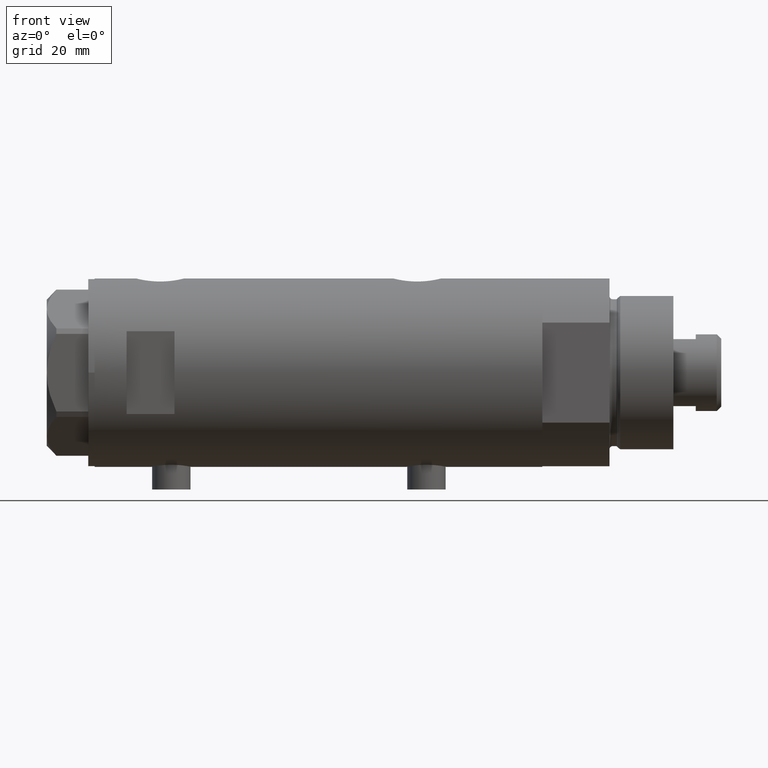
[diagram: clean part render]
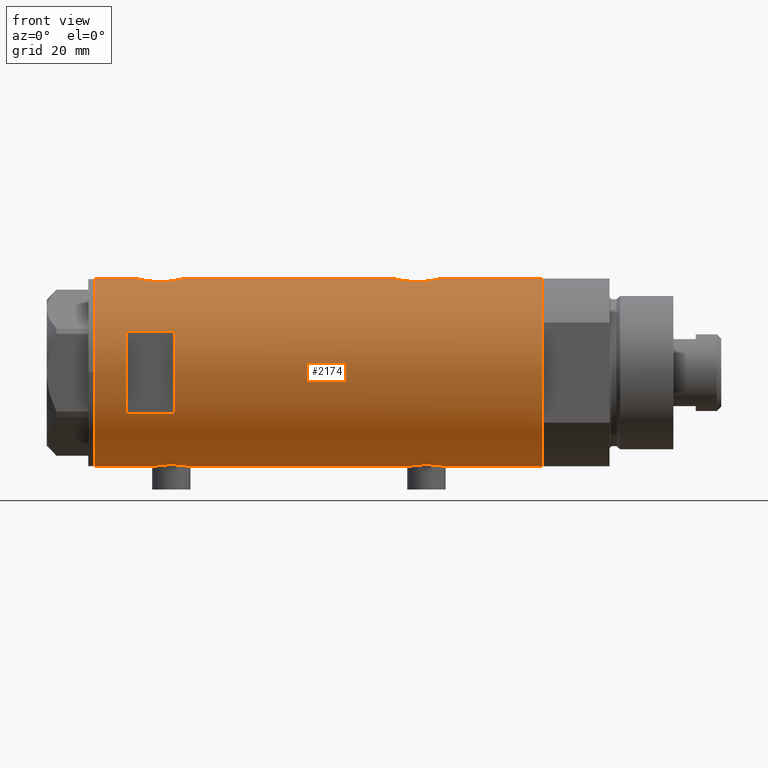
[diagram: same view with one face highlighted and labeled with its STEP entity id]
A machine part, front view. The second image highlights one B-rep face of the part: STEP entity #2174.
In plain terms, the highlighted cylindrical surface (partial cylindrical patch) has radius 29.5 mm, axis along (-1, -0, 0).
Its self-contained STEP definition (entity closure, byte-faithful):
#17 = CARTESIAN_POINT ( 'NONE',  ( 29.17410189149616428, -4.377709617224021521, 43.50524172523978450 ) ) ;
#44 = CARTESIAN_POINT ( 'NONE',  ( 28.98816846638396427, -5.474212100855875285, -25.76747840116693666 ) ) ;
#62 = CARTESIAN_POINT ( 'NONE',  ( -29.50000000000000355, 7.333735512235174214E-18, -27.54999999999999361 ) ) ;
#82 = VERTEX_POINT ( 'NONE', #1591 ) ;
#98 = CARTESIAN_POINT ( 'NONE',  ( 29.50000000000000355, 0.000000000000000000, 70.09999999999999432 ) ) ;
#100 = DIRECTION ( 'NONE',  ( 1.000000000000000000, 0.000000000000000000, 0.000000000000000000 ) ) ;
#140 = LINE ( 'NONE', #2880, #1420 ) ;
#153 = CARTESIAN_POINT ( 'NONE',  ( -28.96147498926091757, -5.613273026676365518, 43.32107301657420351 ) ) ;
#169 = CARTESIAN_POINT ( 'NONE',  ( -29.50000000000000355, 3.612706708236066082E-15, -40.05000000000000426 ) ) ;
#174 = DIRECTION ( 'NONE',  ( 0.000000000000000000, 0.000000000000000000, 1.000000000000000000 ) ) ;
#215 = CARTESIAN_POINT ( 'NONE',  ( -29.38738983524999782, -2.582042051636494584, 40.40464828404620334 ) ) ;
#216 = B_SPLINE_CURVE_WITH_KNOTS ( 'NONE', 3,
 ( #947, #690, #2719, #4446, #670, #2359, #1372, #2023, #3398, #3321, #315, #604, #1692, #3055, #4105, #4401, #1619, #1349, #1016, #2377, #3755, #2986, #2043, #2313, #1716, #3691, #3077, #2741, #1969, #3348, #1646, #2853, #3460, #754, #4232, #3114, #17, #2130, #2423, #3849, #3505, #1448, #399, #380 ),
 .UNSPECIFIED., .F., .F.,
 ( 4, 2, 2, 2, 2, 2, 2, 2, 2, 2, 2, 2, 2, 2, 2, 2, 2, 2, 2, 2, 2, 4 ),
 ( 0.02354540741801906811, 0.02501659793198015777, 0.02648778844594124743, 0.02722338370292179052, 0.02795897895990233362, 0.02943016947386341287, 0.03016576473084396290, 0.03090135998782451293, 0.03237255050178562688, 0.03384374101574673388, 0.03457933627272730126, 0.03531493152970786864, 0.03678612204366901728, 0.03825731255763017286, 0.03972850307159132843, 0.04046409832857190969, 0.04119969358555249095, 0.04193528884253308608, 0.04267088409951366734, 0.04414207461347482986, 0.04561326512743600625, 0.04708445564139716877 ),
 .UNSPECIFIED. ) ;
#231 = EDGE_LOOP ( 'NONE', ( #1975, #3108, #951, #4141 ) ) ;
#235 = CARTESIAN_POINT ( 'NONE',  ( 29.50000000000000355, -1.363453657738827866E-15, 42.09999999999999432 ) ) ;
#236 = CARTESIAN_POINT ( 'NONE',  ( -28.89999183068148625, -5.919812056825914937, 44.08499761164583219 ) ) ;
#239 = FACE_OUTER_BOUND ( 'NONE', #1347, .T. ) ;
#263 = CARTESIAN_POINT ( 'NONE',  ( -29.12311479234994849, -4.702282052053736727, 50.22223528886483734 ) ) ;
#275 = B_SPLINE_CURVE_WITH_KNOTS ( 'NONE', 3,
 ( #1599, #1579, #3670, #3298, #3580, #215, #1868, #2964, #4347, #1250, #583, #1516, #3224, #1530, #153, #2896, #236, #3417, #4037, #2672, #3015, #2333, #4374, #1035, #2398, #3035, #1279, #3377, #291, #1668, #263, #333, #1003, #3738, #1304, #649, #3776, #4425, #2651, #992, #4057, #4078, #967 ),
 .UNSPECIFIED., .F., .F.,
 ( 4, 2, 2, 2, 2, 2, 2, 2, 2, 1, 2, 2, 2, 2, 2, 2, 2, 2, 2, 2, 2, 4 ),
 ( 0.01959598605283711242, 0.02082041500883366134, 0.02204484396483021025, 0.02265705844282848644, 0.02326927292082675916, 0.02449370187682329766, 0.02571813083281983617, 0.02694255978881637467, 0.02755477426681463352, 0.02816698874481289236, 0.02877920322281115467, 0.02939141770080941352, 0.03061584665680593120, 0.03184027561280244889, 0.03306470456879896658, 0.03367691904679723236, 0.03428913352479548426, 0.03551356248079202277, 0.03673799143678855433, 0.03735020591478682705, 0.03796242039278509284, 0.03918684934878162440 ),
 .UNSPECIFIED. ) ;
#291 = CARTESIAN_POINT ( 'NONE',  ( -29.05872136210575007, -5.084685578900224989, 49.74009991908757655 ) ) ;
#315 = CARTESIAN_POINT ( 'NONE',  ( 29.08294968506023537, -4.955368226349206040, 55.25096718198464885 ) ) ;
#330 = ORIENTED_EDGE ( 'NONE', *, *, #1626, .F. ) ;
#333 = CARTESIAN_POINT ( 'NONE',  ( -29.14490888978863481, -4.565669626908227308, 50.37298179876215443 ) ) ;
#345 = CIRCLE ( 'NONE', #482, 29.50000000000000355 ) ;
#366 = ORIENTED_EDGE ( 'NONE', *, *, #2606, .T. ) ;
#380 = CARTESIAN_POINT ( 'NONE',  ( 29.50000000000000355, -1.363453657738827866E-15, 42.09999999999999432 ) ) ;
#384 = CARTESIAN_POINT ( 'NONE',  ( 28.59337635119608123, -7.258007499531540674, -28.94783774348637806 ) ) ;
#395 = DIRECTION ( 'NONE',  ( 0.000000000000000000, 0.000000000000000000, 1.000000000000000000 ) ) ;
#399 = CARTESIAN_POINT ( 'NONE',  ( 29.50000000000000711, -0.4976091310423220726, 42.10000000000000142 ) ) ;
#407 = CARTESIAN_POINT ( 'NONE',  ( 28.55627543367308618, -7.402134446380870259, -29.66780349681762274 ) ) ;
#422 = CARTESIAN_POINT ( 'NONE',  ( 12.96148139681573319, -26.49999999999999645, -70.09999999999999432 ) ) ;
#433 = CARTESIAN_POINT ( 'NONE',  ( 28.86327882047615390, -6.097569254709687137, -26.52632909088550051 ) ) ;
#456 = CARTESIAN_POINT ( 'NONE',  ( -29.31475612970063338, -3.305202271067065212, -39.10847868843855224 ) ) ;
#460 = VERTEX_POINT ( 'NONE', #3457 ) ;
#467 = CARTESIAN_POINT ( 'NONE',  ( 29.23250901027695647, -3.968959760999265729, -24.53153982712338532 ) ) ;
#475 = CARTESIAN_POINT ( 'NONE',  ( -28.87532468301957422, -6.038983942005352823, -35.42329367688535768 ) ) ;
#482 = AXIS2_PLACEMENT_3D ( 'NONE', #1123, #1755, #1778 ) ;
#492 = CARTESIAN_POINT ( 'NONE',  ( 29.48742104091791916, -0.9879539515379959225, -38.35095698353976701 ) ) ;
#512 = ORIENTED_EDGE ( 'NONE', *, *, #3528, .F. ) ;
#583 = CARTESIAN_POINT ( 'NONE',  ( -29.21108587560691205, -4.128853169727746852, 41.39032723090409860 ) ) ;
#604 = CARTESIAN_POINT ( 'NONE',  ( 28.98816846638396072, -5.474212100855873508, 54.73252159883303136 ) ) ;
#619 = VECTOR ( 'NONE', #4261, 1000.000000000000000 ) ;
#649 = CARTESIAN_POINT ( 'NONE',  ( -29.37136442049237317, -2.777615426151012201, 51.71365112622115845 ) ) ;
#670 = CARTESIAN_POINT ( 'NONE',  ( 29.40378957563275009, -2.423455993307766398, 56.71449460115983499 ) ) ;
#686 = CARTESIAN_POINT ( 'NONE',  ( -29.49152014567324542, -0.8152473631539811638, -40.01035294833332046 ) ) ;
#690 = CARTESIAN_POINT ( 'NONE',  ( 29.50000000000001066, -0.4905639552620955079, 57.10000000000000142 ) ) ;
#725 = CARTESIAN_POINT ( 'NONE',  ( 28.98740664105172016, -5.478212189394663589, -36.02819516185791571 ) ) ;
#734 = ORIENTED_EDGE ( 'NONE', *, *, #3705, .F. ) ;
#737 = CARTESIAN_POINT ( 'NONE',  ( -29.50000000000000355, -1.251314770453635394E-15, 52.34999999999999432 ) ) ;
#742 = CARTESIAN_POINT ( 'NONE',  ( 29.26166309680877831, -3.765013078516714629, -37.40510232053061657 ) ) ;
#754 = CARTESIAN_POINT ( 'NONE',  ( 29.05028789344173745, -5.134328181356786480, 44.12753542393733852 ) ) ;
#766 = VECTOR ( 'NONE', #3997, 1000.000000000000000 ) ;
#777 = CARTESIAN_POINT ( 'NONE',  ( -28.91427970886710597, -5.849862889315918579, -36.00993133128850587 ) ) ;
#791 = EDGE_CURVE ( 'NONE', #1580, #1007, #2587, .T. ) ;
#808 = CARTESIAN_POINT ( 'NONE',  ( 29.14531914445118943, -4.579221598645966118, -24.94009767007192480 ) ) ;
#810 = EDGE_CURVE ( 'NONE', #82, #1387, #3627, .T. ) ;
#811 = CARTESIAN_POINT ( 'NONE',  ( -12.96148139681573319, -26.49999999999999645, -70.09999999999999432 ) ) ;
#828 = DIRECTION ( 'NONE',  ( 1.000000000000000000, 0.000000000000000000, 0.000000000000000000 ) ) ;
#859 = EDGE_CURVE ( 'NONE', #3795, #460, #140, .T. ) ;
#886 = CARTESIAN_POINT ( 'NONE',  ( -29.14490888978862415, -4.565669626908225531, -29.52701820123783705 ) ) ;
#947 = CARTESIAN_POINT ( 'NONE',  ( 29.50000000000000355, -8.867894669064240341E-21, 57.09999999999999432 ) ) ;
#951 = ORIENTED_EDGE ( 'NONE', *, *, #4140, .F. ) ;
#966 = DIRECTION ( 'NONE',  ( 0.000000000000000000, 0.000000000000000000, 1.000000000000000000 ) ) ;
#967 = CARTESIAN_POINT ( 'NONE',  ( -29.50000000000000355, -1.251314770453635394E-15, 52.34999999999999432 ) ) ;
#983 = VECTOR ( 'NONE', #966, 1000.000000000000000 ) ;
#992 = CARTESIAN_POINT ( 'NONE',  ( -29.46613381094000417, -1.427468570127970349, 52.18827540540396370 ) ) ;
#1003 = CARTESIAN_POINT ( 'NONE',  ( -29.21016169868140011, -4.135295259288787051, 50.80390088086508626 ) ) ;
#1007 = VERTEX_POINT ( 'NONE', #3672 ) ;
#1016 = CARTESIAN_POINT ( 'NONE',  ( 28.59337635119608123, -7.258007499531542450, 51.55216225651361128 ) ) ;
#1020 = DIRECTION ( 'NONE',  ( 0.000000000000000000, 0.000000000000000000, 1.000000000000000000 ) ) ;
#1035 = CARTESIAN_POINT ( 'NONE',  ( -28.83909499632370199, -6.209928350489660964, 46.91617781082957350 ) ) ;
#1067 = CARTESIAN_POINT ( 'NONE',  ( 28.95592074821772854, -5.641779806288297117, -35.84773495802029686 ) ) ;
#1092 = CARTESIAN_POINT ( 'NONE',  ( 29.14351131874356682, -4.576283785862464981, -36.84705324848519581 ) ) ;
#1095 = CARTESIAN_POINT ( 'NONE',  ( 29.50000000000000355, -8.867894669064240341E-21, 57.09999999999999432 ) ) ;
#1110 = CARTESIAN_POINT ( 'NONE',  ( 29.26065241255351879, -3.756597382275439045, -24.40395565180809712 ) ) ;
#1116 = CARTESIAN_POINT ( 'NONE',  ( -29.25427426731712188, -3.815048240656441880, -38.76740768153335637 ) ) ;
#1123 = CARTESIAN_POINT ( 'NONE',  ( 0.000000000000000000, 0.000000000000000000, 70.09999999999999432 ) ) ;
#1130 = CARTESIAN_POINT ( 'NONE',  ( 28.59279484545186989, -7.260293545345768429, -32.84406557984471675 ) ) ;
#1151 = CARTESIAN_POINT ( 'NONE',  ( 29.33743940633120673, -3.100990836771689629, -24.06672487560934925 ) ) ;
#1156 = CARTESIAN_POINT ( 'NONE',  ( -28.99856997507319178, -5.420860550814445844, -36.93723012145799345 ) ) ;
#1198 = CARTESIAN_POINT ( 'NONE',  ( -29.41741605749266597, -2.213861184585011355, -27.95168825548629243 ) ) ;
#1250 = CARTESIAN_POINT ( 'NONE',  ( -29.25427426731712544, -3.815048240656436107, 41.13259231846663511 ) ) ;
#1260 = VECTOR ( 'NONE', #174, 1000.000000000000000 ) ;
#1279 = CARTESIAN_POINT ( 'NONE',  ( -28.96072448608914485, -5.617106371651694907, 48.87082731660439805 ) ) ;
#1304 = CARTESIAN_POINT ( 'NONE',  ( -29.33479068874800788, -3.136645782783861858, 51.52155254614470437 ) ) ;
#1308 = CARTESIAN_POINT ( 'NONE',  ( 0.000000000000000000, 0.000000000000000000, -70.09999999999999432 ) ) ;
#1321 = VERTEX_POINT ( 'NONE', #3241 ) ;
#1347 = EDGE_LOOP ( 'NONE', ( #1749, #2958, #3544, #512, #3971, #2147, #366, #734, #3458, #1714, #3621, #330 ) ) ;
#1349 = CARTESIAN_POINT ( 'NONE',  ( 28.62986945670068550, -7.114680680403729696, 52.02393776006690729 ) ) ;
#1359 = VERTEX_POINT ( 'NONE', #169 ) ;
#1372 = CARTESIAN_POINT ( 'NONE',  ( 29.31311917412636348, -3.322476152549152406, 56.32842985264294100 ) ) ;
#1387 = VERTEX_POINT ( 'NONE', #3914 ) ;
#1397 = CARTESIAN_POINT ( 'NONE',  ( 28.86290657878786448, -6.099358034152092323, -35.27130670042605232 ) ) ;
#1420 = VECTOR ( 'NONE', #1913, 1000.000000000000000 ) ;
#1448 = CARTESIAN_POINT ( 'NONE',  ( 29.48742104091792982, -0.9879539515379943682, 42.14904301646024720 ) ) ;
#1454 = CARTESIAN_POINT ( 'NONE',  ( 29.43922820968271381, -1.954457150219035322, -23.64210652754224284 ) ) ;
#1468 = CARTESIAN_POINT ( 'NONE',  ( 29.08294968506023892, -4.955368226349206928, -25.24903281801533694 ) ) ;
#1516 = CARTESIAN_POINT ( 'NONE',  ( -29.12379578281188230, -4.705261494361425711, 41.96612042279722488 ) ) ;
#1530 = CARTESIAN_POINT ( 'NONE',  ( -28.99856997507320244, -5.420860550814435186, 42.96276987854199092 ) ) ;
#1579 = CARTESIAN_POINT ( 'NONE',  ( -29.50000000000000711, -0.4084468586314294880, 39.85000000000000853 ) ) ;
#1580 = VERTEX_POINT ( 'NONE', #3887 ) ;
#1587 = VERTEX_POINT ( 'NONE', #98 ) ;
#1591 = CARTESIAN_POINT ( 'NONE',  ( 29.50000000000000355, 0.000000000000000000, -70.09999999999999432 ) ) ;
#1599 = CARTESIAN_POINT ( 'NONE',  ( -29.50000000000000355, 3.612706708267620518E-15, 39.84999999999999432 ) ) ;
#1607 = CARTESIAN_POINT ( 'NONE',  ( -28.83260549167351883, -6.239494599049531409, -34.21615084301799214 ) ) ;
#1619 = CARTESIAN_POINT ( 'NONE',  ( 28.72151714661536204, -6.735173278284145582, 52.93640470570872480 ) ) ;
#1623 = DIRECTION ( 'NONE',  ( 1.000000000000000000, 0.000000000000000000, 0.000000000000000000 ) ) ;
#1626 = EDGE_CURVE ( 'NONE', #1359, #3699, #4384, .T. ) ;
#1628 = CARTESIAN_POINT ( 'NONE',  ( -29.05872136210574297, -5.084685578900223213, -30.15990008091241137 ) ) ;
#1646 = CARTESIAN_POINT ( 'NONE',  ( 28.89374847711160399, -5.952001739005051917, 45.03016018920362740 ) ) ;
#1668 = CARTESIAN_POINT ( 'NONE',  ( -29.08006251441183210, -4.961575945539727250, 49.90618502052525685 ) ) ;
#1675 = CARTESIAN_POINT ( 'NONE',  ( 0.000000000000000000, 0.000000000000000000, 45.09999999999998721 ) ) ;
#1692 = CARTESIAN_POINT ( 'NONE',  ( 28.95619957017310497, -5.640369376407877056, 54.54939726490174934 ) ) ;
#1699 = EDGE_CURVE ( 'NONE', #3699, #3680, #1955, .T. ) ;
#1714 = ORIENTED_EDGE ( 'NONE', *, *, #3668, .F. ) ;
#1716 = CARTESIAN_POINT ( 'NONE',  ( 28.54347630091233867, -7.451827970232786313, 48.61943218216036655 ) ) ;
#1745 = DIRECTION ( 'NONE',  ( 0.000000000000000000, 0.000000000000000000, 1.000000000000000000 ) ) ;
#1749 = ORIENTED_EDGE ( 'NONE', *, *, #3430, .F. ) ;
#1755 = DIRECTION ( 'NONE',  ( 0.000000000000000000, 0.000000000000000000, 1.000000000000000000 ) ) ;
#1761 = CARTESIAN_POINT ( 'NONE',  ( 29.08168479815707386, -4.954011967599716293, -36.53627368515268614 ) ) ;
#1778 = DIRECTION ( 'NONE',  ( 1.000000000000000000, 0.000000000000000000, 0.000000000000000000 ) ) ;
#1784 = CARTESIAN_POINT ( 'NONE',  ( 28.62986945670068195, -7.114680680403731472, -28.47606223993307850 ) ) ;
#1786 = EDGE_CURVE ( 'NONE', #1007, #1321, #3431, .T. ) ;
#1792 = CARTESIAN_POINT ( 'NONE',  ( -29.45797511864983065, -1.625450914296656890, -39.84905127530045377 ) ) ;
#1809 = CARTESIAN_POINT ( 'NONE',  ( -28.89999183068148270, -5.919812056825918489, -35.81500238835415928 ) ) ;
#1843 = CARTESIAN_POINT ( 'NONE',  ( 29.50000000000000355, -8.867894669064240341E-21, -23.39999999999999147 ) ) ;
#1855 = CARTESIAN_POINT ( 'NONE',  ( -28.85437239305167267, -6.138402996999199779, -35.02756598756702999 ) ) ;
#1868 = CARTESIAN_POINT ( 'NONE',  ( -29.37055817176825556, -2.766456155496576752, 40.49186392411088775 ) ) ;
#1892 = CARTESIAN_POINT ( 'NONE',  ( -28.87288655002253890, -6.050870399762843022, -32.18249459278194990 ) ) ;
#1893 = VERTEX_POINT ( 'NONE', #1095 ) ;
#1913 = DIRECTION ( 'NONE',  ( 0.000000000000000000, 0.000000000000000000, 1.000000000000000000 ) ) ;
#1940 = CARTESIAN_POINT ( 'NONE',  ( -28.99772237063717739, -5.425436006677728962, -30.67037325447358143 ) ) ;
#1951 = CARTESIAN_POINT ( 'NONE',  ( 0.000000000000000000, 0.000000000000000000, -70.09999999999999432 ) ) ;
#1955 = LINE ( 'NONE', #4356, #2053 ) ;
#1969 = CARTESIAN_POINT ( 'NONE',  ( 28.77424839213763264, -6.509286280845835826, 45.84218748394042109 ) ) ;
#1975 = ORIENTED_EDGE ( 'NONE', *, *, #1786, .F. ) ;
#2023 = CARTESIAN_POINT ( 'NONE',  ( 29.26065241255352589, -3.756597382275444819, 56.09604434819189578 ) ) ;
#2043 = CARTESIAN_POINT ( 'NONE',  ( 28.53070445389874976, -7.499926890973428684, 49.84953420512916722 ) ) ;
#2053 = VECTOR ( 'NONE', #4286, 1000.000000000000000 ) ;
#2093 = CARTESIAN_POINT ( 'NONE',  ( 29.05028789344174456, -5.134328181356795362, -36.37246457606265437 ) ) ;
#2111 = CARTESIAN_POINT ( 'NONE',  ( 29.50000000000000711, -0.4905639552620933430, -23.40000000000000213 ) ) ;
#2116 = CARTESIAN_POINT ( 'NONE',  ( -29.43333839972901700, -2.017691896334584900, -39.72935989047841332 ) ) ;
#2130 = CARTESIAN_POINT ( 'NONE',  ( 29.26166309680877475, -3.765013078516705303, 43.09489767946936922 ) ) ;
#2138 = CARTESIAN_POINT ( 'NONE',  ( 29.48775985681159284, -0.9798361908152550814, -23.44769556118673037 ) ) ;
#2146 = VERTEX_POINT ( 'NONE', #2401 ) ;
#2147 = ORIENTED_EDGE ( 'NONE', *, *, #3692, .F. ) ;
#2167 = CARTESIAN_POINT ( 'NONE',  ( -29.50000000000001421, -0.4084468586314303207, -40.05000000000001847 ) ) ;
#2174 = ADVANCED_FACE ( 'NONE', ( #239, #4060 ), #4452, .T. ) ;
#2181 = CARTESIAN_POINT ( 'NONE',  ( 28.95619957017311208, -5.640369376407877944, -25.95060273509822579 ) ) ;
#2203 = CARTESIAN_POINT ( 'NONE',  ( 29.50000000000000355, -2.068661527048439545E-15, -38.39999999999999147 ) ) ;
#2211 = CIRCLE ( 'NONE', #3207, 29.50000000000000355 ) ;
#2212 = CARTESIAN_POINT ( 'NONE',  ( -28.96072448608914485, -5.617106371651691354, -31.02917268339557211 ) ) ;
#2235 = CARTESIAN_POINT ( 'NONE',  ( -29.46613381094001483, -1.427468570127968350, -27.71172459459601001 ) ) ;
#2253 = CARTESIAN_POINT ( 'NONE',  ( -29.50000000000001066, -0.4141077724969902119, -27.55000000000000071 ) ) ;
#2267 = CARTESIAN_POINT ( 'NONE',  ( 29.50000000000000711, -0.4976091310423219616, -38.39999999999999858 ) ) ;
#2280 = VECTOR ( 'NONE', #395, 1000.000000000000000 ) ;
#2290 = DIRECTION ( 'NONE',  ( 0.000000000000000000, 0.000000000000000000, 1.000000000000000000 ) ) ;
#2295 = CARTESIAN_POINT ( 'NONE',  ( -29.43130053621387532, -2.021711243143688552, -27.88244954039818779 ) ) ;
#2313 = CARTESIAN_POINT ( 'NONE',  ( 28.53064705443910043, -7.500145243772282200, 49.10755296708880735 ) ) ;
#2324 = CARTESIAN_POINT ( 'NONE',  ( 29.50000000000000355, -8.867894669064240341E-21, -23.39999999999999147 ) ) ;
#2333 = CARTESIAN_POINT ( 'NONE',  ( -28.83034328164762172, -6.249904501012241376, 45.89085460435939723 ) ) ;
#2350 = CARTESIAN_POINT ( 'NONE',  ( 29.50000000000000355, 0.000000000000000000, -70.09999999999999432 ) ) ;
#2359 = CARTESIAN_POINT ( 'NONE',  ( 29.33743940633121028, -3.100990836771690073, 56.43327512439066140 ) ) ;
#2369 = LINE ( 'NONE', #2350, #766 ) ;
#2377 = CARTESIAN_POINT ( 'NONE',  ( 28.55627543367308618, -7.402134446380870259, 50.83219650318237370 ) ) ;
#2398 = CARTESIAN_POINT ( 'NONE',  ( -28.87288655002253179, -6.050870399762844798, 47.71750540721806289 ) ) ;
#2401 = CARTESIAN_POINT ( 'NONE',  ( -29.50000000000000355, 3.612708057484692393E-15, -70.09999999999999432 ) ) ;
#2423 = CARTESIAN_POINT ( 'NONE',  ( 29.31438578683259522, -3.335040812377227937, 42.86452723156225630 ) ) ;
#2450 = CARTESIAN_POINT ( 'NONE',  ( 29.17410189149616428, -4.377709617224029515, -36.99475827476019418 ) ) ;
#2476 = CARTESIAN_POINT ( 'NONE',  ( -29.12379578281188941, -4.705261494361431929, -37.93387957720273818 ) ) ;
#2513 = CARTESIAN_POINT ( 'NONE',  ( 28.54678862679669038, -7.438514536388029619, -29.91041725679210472 ) ) ;
#2519 = CARTESIAN_POINT ( 'NONE',  ( -28.96147498926091757, -5.613273026676372623, -36.57892698342578086 ) ) ;
#2543 = VERTEX_POINT ( 'NONE', #235 ) ;
#2587 = LINE ( 'NONE', #811, #619 ) ;
#2606 = EDGE_CURVE ( 'NONE', #1893, #1587, #4076, .T. ) ;
#2621 = CARTESIAN_POINT ( 'NONE',  ( 29.40305664607912917, -2.432276947006150714, -38.01147801006585780 ) ) ;
#2632 = VECTOR ( 'NONE', #1020, 1000.000000000000000 ) ;
#2651 = CARTESIAN_POINT ( 'NONE',  ( -29.45566469296799283, -1.628675872921102163, 52.13756032628675996 ) ) ;
#2672 = CARTESIAN_POINT ( 'NONE',  ( -28.84137202824161861, -6.198846007008985914, 45.27611738876124292 ) ) ;
#2676 = LINE ( 'NONE', #3742, #2632 ) ;
#2693 = CARTESIAN_POINT ( 'NONE',  ( -29.50000000000000355, 3.612706708267620518E-15, 39.84999999999999432 ) ) ;
#2719 = CARTESIAN_POINT ( 'NONE',  ( 29.48775985681159284, -0.9798361908152568578, 57.05230443881323765 ) ) ;
#2741 = CARTESIAN_POINT ( 'NONE',  ( 28.72051071455671334, -6.739402597165489617, 46.27281026296244448 ) ) ;
#2772 = CARTESIAN_POINT ( 'NONE',  ( 28.89374847711160399, -5.952001739005060799, -35.46983981079634418 ) ) ;
#2802 = CARTESIAN_POINT ( 'NONE',  ( 28.77541267587658069, -6.504036106227637504, -27.13371449864084539 ) ) ;
#2821 = CARTESIAN_POINT ( 'NONE',  ( 29.40378957563275009, -2.423455993307769063, -23.78550539884014725 ) ) ;
#2836 = CARTESIAN_POINT ( 'NONE',  ( 28.53399451186755442, -7.487442594623181513, -30.40102514498886777 ) ) ;
#2853 = CARTESIAN_POINT ( 'NONE',  ( 28.95592074821772854, -5.641779806288289123, 44.65226504197967472 ) ) ;
#2880 = CARTESIAN_POINT ( 'NONE',  ( -29.50000000000000355, 3.612708057484692393E-15, -70.09999999999999432 ) ) ;
#2891 = CARTESIAN_POINT ( 'NONE',  ( 12.96148139681573319, -26.49999999999998934, 60.09999999999998721 ) ) ;
#2896 = CARTESIAN_POINT ( 'NONE',  ( -28.91427970886710597, -5.849862889315913250, 43.89006866871147849 ) ) ;
#2911 = AXIS2_PLACEMENT_3D ( 'NONE', #1308, #3039, #1623 ) ;
#2932 = CARTESIAN_POINT ( 'NONE',  ( -29.50000000000000355, 7.333735512235174214E-18, -27.54999999999999361 ) ) ;
#2948 = CARTESIAN_POINT ( 'NONE',  ( 29.43916859571211120, -1.954329820671501183, -38.15764479242086793 ) ) ;
#2954 = CARTESIAN_POINT ( 'NONE',  ( -29.33479068874800078, -3.136645782783866743, -28.37844745385530842 ) ) ;
#2956 = EDGE_CURVE ( 'NONE', #3977, #2543, #2369, .T. ) ;
#2958 = ORIENTED_EDGE ( 'NONE', *, *, #3661, .T. ) ;
#2964 = CARTESIAN_POINT ( 'NONE',  ( -29.33428005013170292, -3.127775714777720761, 40.68506796127406488 ) ) ;
#2969 = CARTESIAN_POINT ( 'NONE',  ( -29.25361239466581154, -3.820294933898102485, -28.83642010285960211 ) ) ;
#2986 = CARTESIAN_POINT ( 'NONE',  ( 28.53399451186755442, -7.487442594623181513, 50.09897485501112868 ) ) ;
#2996 = CARTESIAN_POINT ( 'NONE',  ( -29.12311479234994138, -4.702282052053733175, -29.67776471113516479 ) ) ;
#3015 = CARTESIAN_POINT ( 'NONE',  ( -28.83260549167351527, -6.239494599049529633, 45.68384915698199222 ) ) ;
#3035 = CARTESIAN_POINT ( 'NONE',  ( -28.89828397447512032, -5.929977241120604425, 48.11611952241996448 ) ) ;
#3039 = DIRECTION ( 'NONE',  ( 0.000000000000000000, 0.000000000000000000, 1.000000000000000000 ) ) ;
#3055 = CARTESIAN_POINT ( 'NONE',  ( 28.89374408016308848, -5.952042782108791563, 54.16984537025963675 ) ) ;
#3077 = CARTESIAN_POINT ( 'NONE',  ( 28.62983003203746080, -7.114781472982439681, 47.17726941146262476 ) ) ;
#3091 = LINE ( 'NONE', #422, #2280 ) ;
#3108 = ORIENTED_EDGE ( 'NONE', *, *, #791, .F. ) ;
#3114 = CARTESIAN_POINT ( 'NONE',  ( 29.14351131874355261, -4.576283785862462317, 43.65294675151479709 ) ) ;
#3163 = CARTESIAN_POINT ( 'NONE',  ( 28.72151714661536204, -6.735173278284146470, -27.56359529429124322 ) ) ;
#3166 = CARTESIAN_POINT ( 'NONE',  ( -28.84137202824162216, -6.198846007008988579, -34.62388261123872724 ) ) ;
#3203 = CARTESIAN_POINT ( 'NONE',  ( 28.62983003203746080, -7.114781472982439681, -33.32273058853736813 ) ) ;
#3207 = AXIS2_PLACEMENT_3D ( 'NONE', #3500, #3769, #100 ) ;
#3208 = CARTESIAN_POINT ( 'NONE',  ( 29.50000000000000355, 0.000000000000000000, -70.09999999999999432 ) ) ;
#3224 = CARTESIAN_POINT ( 'NONE',  ( -29.07948744859177026, -4.968520850090763830, 42.28663632621106672 ) ) ;
#3241 = CARTESIAN_POINT ( 'NONE',  ( 12.96148139681573319, -26.49999999999998934, 45.09999999999998721 ) ) ;
#3251 = CARTESIAN_POINT ( 'NONE',  ( -29.37136442049237317, -2.777615426151016642, -28.18634887377885079 ) ) ;
#3282 = CARTESIAN_POINT ( 'NONE',  ( -28.83909499632370199, -6.209928350489661852, -32.98382218917040376 ) ) ;
#3298 = CARTESIAN_POINT ( 'NONE',  ( -29.45797511864983420, -1.625450914296655336, 40.05094872469953060 ) ) ;
#3321 = CARTESIAN_POINT ( 'NONE',  ( 29.14531914445117522, -4.579221598645967006, 55.55990232992807876 ) ) ;
#3348 = CARTESIAN_POINT ( 'NONE',  ( 28.86290657878785737, -6.099358034152089658, 45.22869329957392637 ) ) ;
#3377 = CARTESIAN_POINT ( 'NONE',  ( -28.99772237063717739, -5.425436006677730738, 49.22962674552640294 ) ) ;
#3398 = CARTESIAN_POINT ( 'NONE',  ( 29.23250901027695647, -3.968959760999266617, 55.96846017287659691 ) ) ;
#3417 = CARTESIAN_POINT ( 'NONE',  ( -28.87532468301957067, -6.038983942005349270, 44.47670632311462668 ) ) ;
#3430 = EDGE_CURVE ( 'NONE', #2146, #1359, #2676, .T. ) ;
#3431 = CIRCLE ( 'NONE', #4228, 29.50000000000000355 ) ;
#3457 = CARTESIAN_POINT ( 'NONE',  ( -29.50000000000000355, 3.612708057484692393E-15, 70.09999999999999432 ) ) ;
#3458 = ORIENTED_EDGE ( 'NONE', *, *, #859, .F. ) ;
#3460 = CARTESIAN_POINT ( 'NONE',  ( 28.98740664105171305, -5.478212189394655596, 44.47180483814204877 ) ) ;
#3488 = CARTESIAN_POINT ( 'NONE',  ( 28.77424839213764329, -6.509286280845839379, -34.65781251605954338 ) ) ;
#3500 = CARTESIAN_POINT ( 'NONE',  ( 0.000000000000000000, 0.000000000000000000, 60.09999999999998721 ) ) ;
#3503 = CIRCLE ( 'NONE', #4229, 29.50000000000000355 ) ;
#3505 = CARTESIAN_POINT ( 'NONE',  ( 29.43916859571211120, -1.954329820671499407, 42.34235520757911075 ) ) ;
#3513 = CARTESIAN_POINT ( 'NONE',  ( 28.89374408016309914, -5.952042782108792451, -26.33015462974034193 ) ) ;
#3528 = EDGE_CURVE ( 'NONE', #3977, #1387, #4101, .T. ) ;
#3538 = CARTESIAN_POINT ( 'NONE',  ( -29.37055817176824846, -2.766456155496577640, -39.40813607588911083 ) ) ;
#3544 = ORIENTED_EDGE ( 'NONE', *, *, #810, .T. ) ;
#3554 = CARTESIAN_POINT ( 'NONE',  ( 28.53070445389874621, -7.499926890973427795, -30.65046579487083278 ) ) ;
#3580 = CARTESIAN_POINT ( 'NONE',  ( -29.43333839972901345, -2.017691896334574686, 40.17064010952159236 ) ) ;
#3590 = CARTESIAN_POINT ( 'NONE',  ( -28.83028160285196151, -6.250189016175733414, -33.39032996785321217 ) ) ;
#3621 = ORIENTED_EDGE ( 'NONE', *, *, #1699, .F. ) ;
#3627 = LINE ( 'NONE', #3208, #1260 ) ;
#3648 = CARTESIAN_POINT ( 'NONE',  ( 29.31438578683260232, -3.335040812377227049, -37.63547276843772238 ) ) ;
#3659 = CARTESIAN_POINT ( 'NONE',  ( -28.89828397447512032, -5.929977241120605314, -31.78388047758002344 ) ) ;
#3661 = EDGE_CURVE ( 'NONE', #2146, #82, #3503, .T. ) ;
#3668 = EDGE_CURVE ( 'NONE', #3680, #3795, #275, .T. ) ;
#3670 = CARTESIAN_POINT ( 'NONE',  ( -29.49152014567325253, -0.8152473631539810528, 39.88964705166667812 ) ) ;
#3672 = CARTESIAN_POINT ( 'NONE',  ( -12.96148139681573319, -26.49999999999998934, 45.09999999999998721 ) ) ;
#3680 = VERTEX_POINT ( 'NONE', #2693 ) ;
#3691 = CARTESIAN_POINT ( 'NONE',  ( 28.59279484545186989, -7.260293545345763100, 47.65593442015525483 ) ) ;
#3692 = EDGE_CURVE ( 'NONE', #1893, #2543, #216, .T. ) ;
#3699 = VERTEX_POINT ( 'NONE', #62 ) ;
#3705 = EDGE_CURVE ( 'NONE', #460, #1587, #345, .T. ) ;
#3738 = CARTESIAN_POINT ( 'NONE',  ( -29.25361239466581154, -3.820294933898098044, 51.06357989714039292 ) ) ;
#3742 = CARTESIAN_POINT ( 'NONE',  ( -29.50000000000000355, 3.612708057484692393E-15, -70.09999999999999432 ) ) ;
#3753 = CARTESIAN_POINT ( 'NONE',  ( -29.38738983525000492, -2.582042051636506130, -39.49535171595380234 ) ) ;
#3755 = CARTESIAN_POINT ( 'NONE',  ( 28.54678862679669038, -7.438514536388029619, 50.58958274320788462 ) ) ;
#3769 = DIRECTION ( 'NONE',  ( -0.000000000000000000, 0.000000000000000000, -1.000000000000000000 ) ) ;
#3776 = CARTESIAN_POINT ( 'NONE',  ( -29.41741605749266597, -2.213861184585005581, 51.94831174451368838 ) ) ;
#3795 = VERTEX_POINT ( 'NONE', #737 ) ;
#3813 = CARTESIAN_POINT ( 'NONE',  ( 28.53064705443910754, -7.500145243772285752, -31.39244703291117133 ) ) ;
#3834 = CARTESIAN_POINT ( 'NONE',  ( 29.31311917412635992, -3.322476152549147521, -24.17157014735704834 ) ) ;
#3849 = CARTESIAN_POINT ( 'NONE',  ( 29.40305664607911140, -2.432276947006147605, 42.48852198993412088 ) ) ;
#3865 = CARTESIAN_POINT ( 'NONE',  ( -29.07948744859177026, -4.968520850090774488, -37.61336367378891055 ) ) ;
#3875 = VERTEX_POINT ( 'NONE', #2891 ) ;
#3887 = CARTESIAN_POINT ( 'NONE',  ( -12.96148139681573319, -26.49999999999998934, 60.09999999999998721 ) ) ;
#3914 = CARTESIAN_POINT ( 'NONE',  ( 29.50000000000000355, -2.068661527048439545E-15, -38.39999999999999147 ) ) ;
#3924 = CARTESIAN_POINT ( 'NONE',  ( -29.45566469296798218, -1.628675872921094170, -27.76243967371322796 ) ) ;
#3951 = CARTESIAN_POINT ( 'NONE',  ( -29.21016169868139656, -4.135295259288787939, -29.09609911913490876 ) ) ;
#3971 = ORIENTED_EDGE ( 'NONE', *, *, #2956, .T. ) ;
#3972 = CARTESIAN_POINT ( 'NONE',  ( -28.83034328164762528, -6.249904501012243152, -34.00914539564058714 ) ) ;
#3977 = VERTEX_POINT ( 'NONE', #2324 ) ;
#3997 = DIRECTION ( 'NONE',  ( 0.000000000000000000, 0.000000000000000000, 1.000000000000000000 ) ) ;
#4020 = CARTESIAN_POINT ( 'NONE',  ( -29.08006251441182854, -4.961575945539725474, -29.99381497947475239 ) ) ;
#4037 = CARTESIAN_POINT ( 'NONE',  ( -28.85437274499025762, -6.138402965889059537, 44.87243403294918664 ) ) ;
#4056 = CARTESIAN_POINT ( 'NONE',  ( 29.50000000000000355, 0.000000000000000000, -70.09999999999999432 ) ) ;
#4057 = CARTESIAN_POINT ( 'NONE',  ( -29.49128673965871172, -0.8227026017531495761, 52.30924441072095021 ) ) ;
#4060 = FACE_BOUND ( 'NONE', #231, .T. ) ;
#4076 = LINE ( 'NONE', #4056, #983 ) ;
#4078 = CARTESIAN_POINT ( 'NONE',  ( -29.49999999999999645, -0.4141077724969866036, 52.34999999999998721 ) ) ;
#4101 = B_SPLINE_CURVE_WITH_KNOTS ( 'NONE', 3,
 ( #1843, #2111, #2138, #1454, #2821, #1151, #3834, #1110, #467, #808, #1468, #44, #2181, #3513, #433, #2802, #3163, #1784, #384, #407, #2513, #2836, #3554, #3813, #4212, #1130, #3203, #4180, #3488, #1397, #2772, #1067, #725, #2093, #1761, #1092, #2450, #742, #3648, #2621, #2948, #492, #2267, #2203 ),
 .UNSPECIFIED., .F., .F.,
 ( 4, 2, 2, 2, 2, 2, 2, 2, 2, 2, 2, 2, 2, 2, 2, 2, 2, 2, 2, 2, 2, 4 ),
 ( 0.02354540741801906117, 0.02501659793198018553, 0.02648778844594131335, 0.02722338370292187726, 0.02795897895990244117, 0.02943016947386356552, 0.03016576473084412943, 0.03090135998782469334, 0.03237255050178582116, 0.03384374101574694205, 0.03457933627272750943, 0.03531493152970806987, 0.03678612204366919769, 0.03825731255763031857, 0.03972850307159145333, 0.04046409832857202071, 0.04119969358555258809, 0.04193528884253315547, 0.04267088409951372979, 0.04414207461347487149, 0.04561326512743601319, 0.04708445564139715489 ),
 .UNSPECIFIED. ) ;
#4105 = CARTESIAN_POINT ( 'NONE',  ( 28.86327882047615034, -6.097569254709688913, 53.97367090911448173 ) ) ;
#4122 = CARTESIAN_POINT ( 'NONE',  ( -29.50000000000000355, 3.612706708236066082E-15, -40.05000000000000426 ) ) ;
#4140 = EDGE_CURVE ( 'NONE', #3875, #1580, #2211, .T. ) ;
#4141 = ORIENTED_EDGE ( 'NONE', *, *, #4271, .F. ) ;
#4180 = CARTESIAN_POINT ( 'NONE',  ( 28.72051071455672400, -6.739402597165488729, -34.22718973703751999 ) ) ;
#4200 = CARTESIAN_POINT ( 'NONE',  ( -29.33428005013169582, -3.127775714777724758, -39.21493203872592659 ) ) ;
#4212 = CARTESIAN_POINT ( 'NONE',  ( 28.54347630091234223, -7.451827970232788978, -31.88056781783958726 ) ) ;
#4228 = AXIS2_PLACEMENT_3D ( 'NONE', #1675, #1745, #4457 ) ;
#4229 = AXIS2_PLACEMENT_3D ( 'NONE', #1951, #2290, #828 ) ;
#4232 = CARTESIAN_POINT ( 'NONE',  ( 29.08168479815708451, -4.954011967599717181, 43.96372631484729965 ) ) ;
#4247 = CARTESIAN_POINT ( 'NONE',  ( -29.21108587560690495, -4.128853169727752181, -38.50967276909590709 ) ) ;
#4261 = DIRECTION ( 'NONE',  ( -0.000000000000000000, -0.000000000000000000, -1.000000000000000000 ) ) ;
#4271 = EDGE_CURVE ( 'NONE', #1321, #3875, #3091, .T. ) ;
#4286 = DIRECTION ( 'NONE',  ( 0.000000000000000000, 0.000000000000000000, 1.000000000000000000 ) ) ;
#4335 = CARTESIAN_POINT ( 'NONE',  ( -29.49128673965871883, -0.8227026017531489099, -27.59075558927904126 ) ) ;
#4347 = CARTESIAN_POINT ( 'NONE',  ( -29.31475612970062983, -3.305202271067057218, 40.79152131156142502 ) ) ;
#4356 = CARTESIAN_POINT ( 'NONE',  ( -29.50000000000000355, 3.612708057484692393E-15, -70.09999999999999432 ) ) ;
#4374 = CARTESIAN_POINT ( 'NONE',  ( -28.83028160285195796, -6.250189016175734302, 46.50967003214677220 ) ) ;
#4384 = B_SPLINE_CURVE_WITH_KNOTS ( 'NONE', 3,
 ( #4122, #2167, #686, #1792, #2116, #3753, #3538, #4200, #456, #1116, #4247, #2476, #3865, #1156, #2519, #777, #1809, #475, #1855, #3166, #1607, #3972, #3590, #3282, #1892, #3659, #2212, #1940, #1628, #4020, #2996, #886, #3951, #2969, #2954, #3251, #1198, #2295, #3924, #2235, #4335, #2253, #2932 ),
 .UNSPECIFIED., .F., .F.,
 ( 4, 2, 2, 2, 2, 2, 2, 2, 2, 1, 2, 2, 2, 2, 2, 2, 2, 2, 2, 2, 2, 4 ),
 ( 0.01959598605283711936, 0.02082041500883363358, 0.02204484396483014433, 0.02265705844282839970, 0.02326927292082665161, 0.02449370187682316583, 0.02571813083281968351, 0.02694255978881619773, 0.02755477426681446698, 0.02816698874481273623, 0.02877920322281100202, 0.02939141770080926780, 0.03061584665680580630, 0.03184027561280233787, 0.03306470456879888331, 0.03367691904679715603, 0.03428913352479542875, 0.03551356248079198807, 0.03673799143678854046, 0.03735020591478681318, 0.03796242039278509284, 0.03918684934878164522 ),
 .UNSPECIFIED. ) ;
#4401 = CARTESIAN_POINT ( 'NONE',  ( 28.77541267587658780, -6.504036106227640168, 53.36628550135916527 ) ) ;
#4425 = CARTESIAN_POINT ( 'NONE',  ( -29.43130053621386821, -2.021711243143695214, 52.01755045960180723 ) ) ;
#4446 = CARTESIAN_POINT ( 'NONE',  ( 29.43922820968270671, -1.954457150219038208, 56.85789347245773229 ) ) ;
#4452 = CYLINDRICAL_SURFACE ( 'NONE', #2911, 29.50000000000000355 ) ;
#4457 = DIRECTION ( 'NONE',  ( -1.000000000000000000, 0.000000000000000000, 0.000000000000000000 ) ) ;